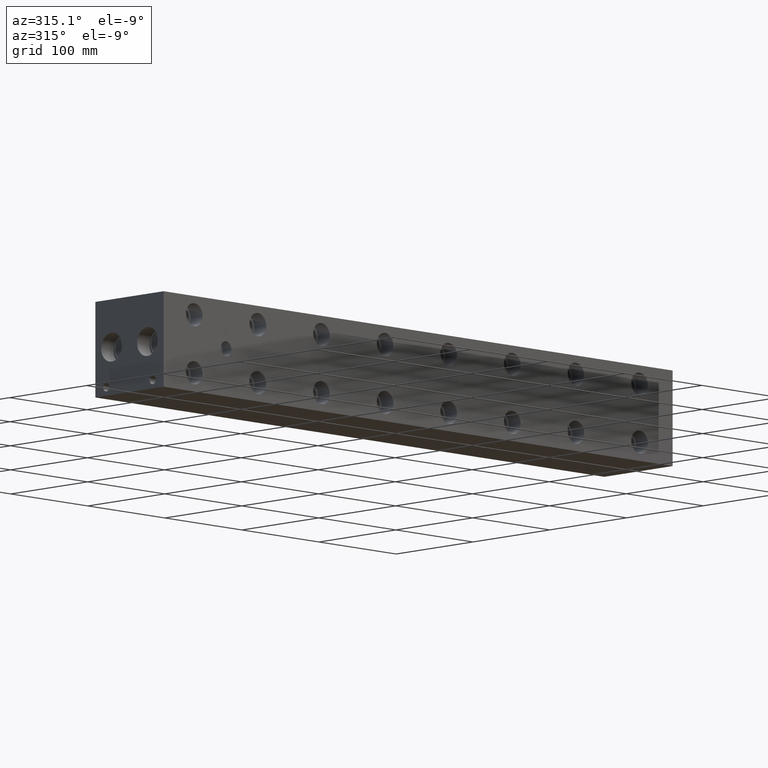
[diagram: clean part render]
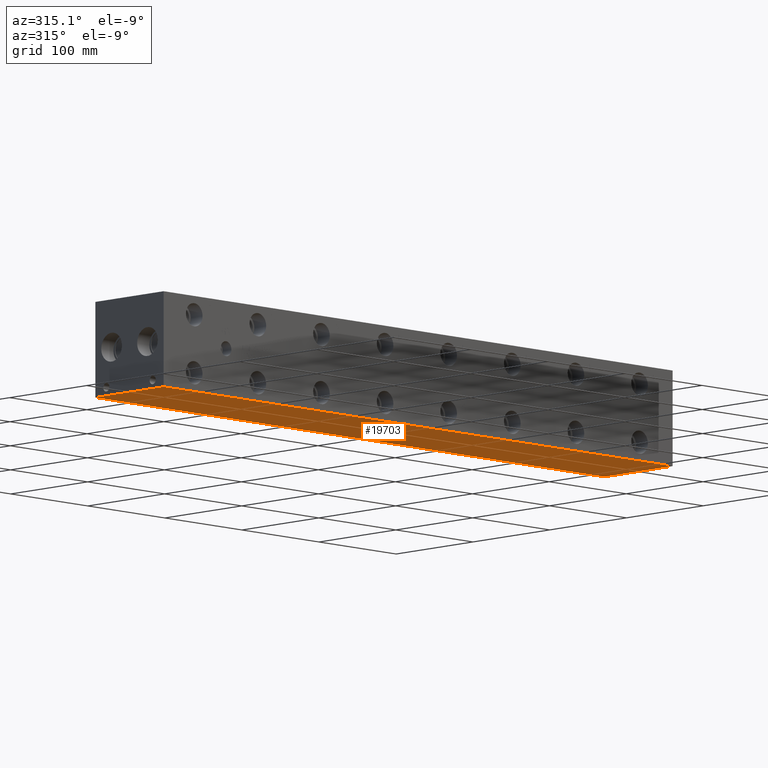
[diagram: same view with one face highlighted and labeled with its STEP entity id]
A machine part, auxiliary view. The second image highlights one B-rep face of the part: STEP entity #19703.
In plain terms, the highlighted planar face has unit normal (0, 0, 1).
Its self-contained STEP definition (entity closure, byte-faithful):
#2767=FACE_OUTER_BOUND('',#4012,.T.);
#4012=EDGE_LOOP('',(#17452,#17453,#17454,#17455));
#4069=LINE('',#25564,#5759);
#4129=LINE('',#25839,#5819);
#4403=LINE('',#28094,#6093);
#5701=LINE('',#34197,#7391);
#5759=VECTOR('',#21114,10.);
#5819=VECTOR('',#21228,10.);
#6093=VECTOR('',#21652,10.);
#7391=VECTOR('',#25300,10.);
#7441=VERTEX_POINT('',#25562);
#7442=VERTEX_POINT('',#25563);
#7501=VERTEX_POINT('',#25837);
#7502=VERTEX_POINT('',#25838);
#9383=EDGE_CURVE('',#7441,#7442,#4069,.T.);
#9467=EDGE_CURVE('',#7501,#7502,#4129,.T.);
#9947=EDGE_CURVE('',#7502,#7441,#4403,.T.);
#12024=EDGE_CURVE('',#7442,#7501,#5701,.T.);
#17452=ORIENTED_EDGE('',*,*,#9947,.F.);
#17453=ORIENTED_EDGE('',*,*,#9467,.F.);
#17454=ORIENTED_EDGE('',*,*,#12024,.F.);
#17455=ORIENTED_EDGE('',*,*,#9383,.F.);
#17993=PLANE('',#21017);
#19703=ADVANCED_FACE('',(#2767),#17993,.F.);
#21017=AXIS2_PLACEMENT_3D('',#34202,#25308,#25309);
#21114=DIRECTION('',(0.,1.,0.));
#21228=DIRECTION('',(0.,-1.,0.));
#21652=DIRECTION('',(1.,0.,0.));
#25300=DIRECTION('',(-1.,0.,0.));
#25308=DIRECTION('center_axis',(0.,0.,1.));
#25309=DIRECTION('ref_axis',(1.,0.,0.));
#25562=CARTESIAN_POINT('',(660.4,0.,0.));
#25563=CARTESIAN_POINT('',(660.4,88.9,0.));
#25564=CARTESIAN_POINT('',(660.4,0.,0.));
#25837=CARTESIAN_POINT('',(0.,88.9,0.));
#25838=CARTESIAN_POINT('',(0.,0.,0.));
#25839=CARTESIAN_POINT('',(0.,88.9,0.));
#28094=CARTESIAN_POINT('',(0.,0.,0.));
#34197=CARTESIAN_POINT('',(660.4,88.9,0.));
#34202=CARTESIAN_POINT('Origin',(330.2,44.45,0.));